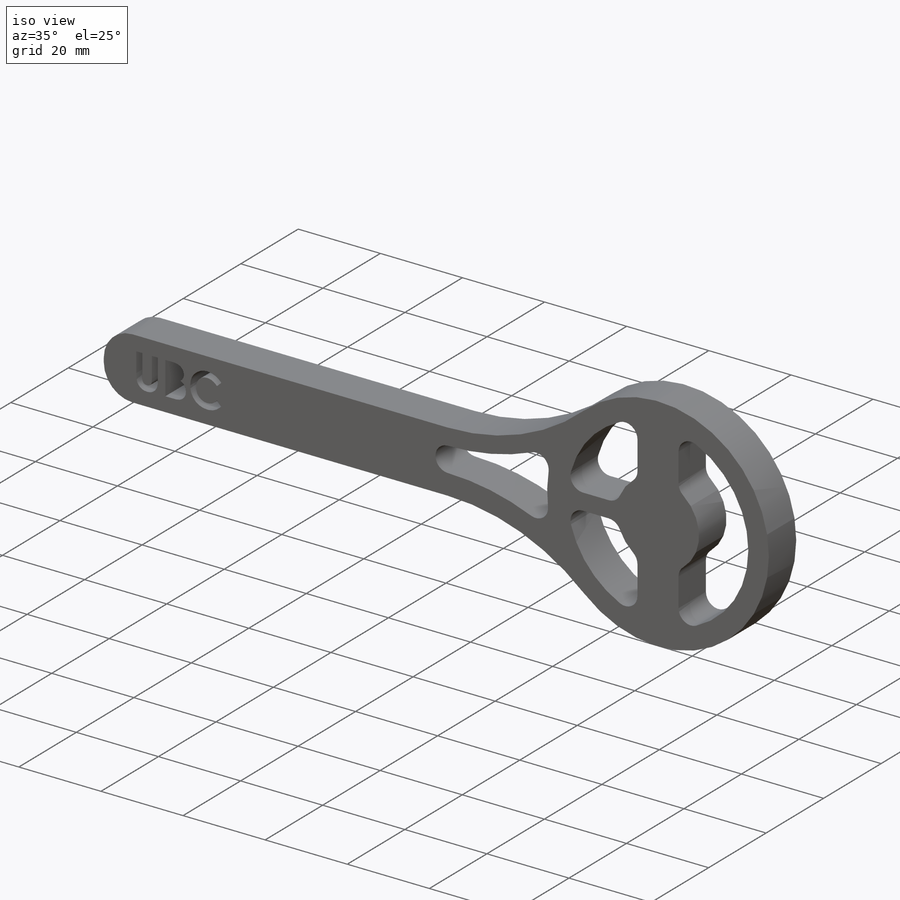
[diagram: iso view]
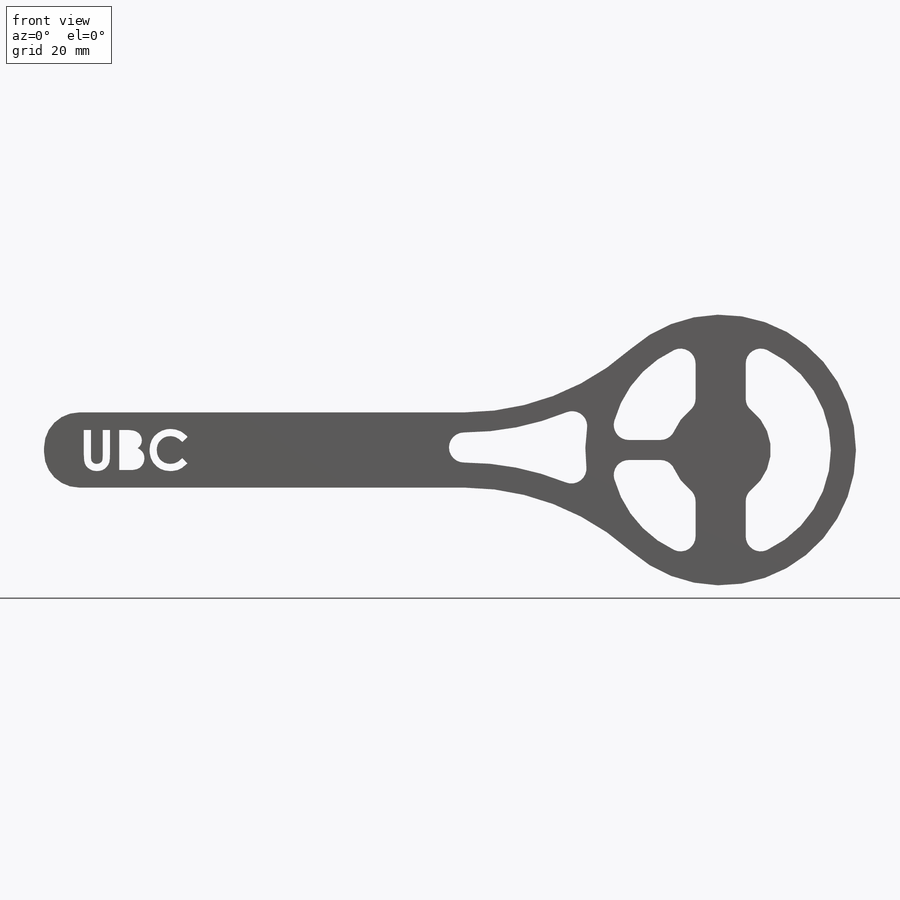
[diagram: front view]
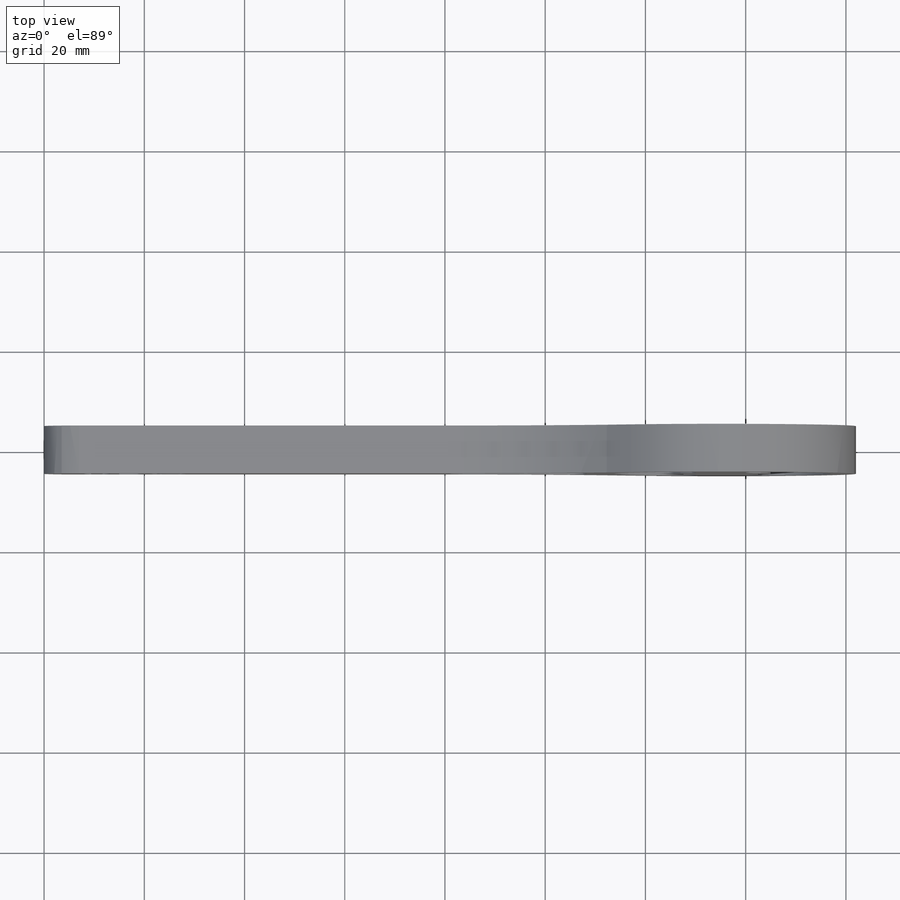
[diagram: top view]
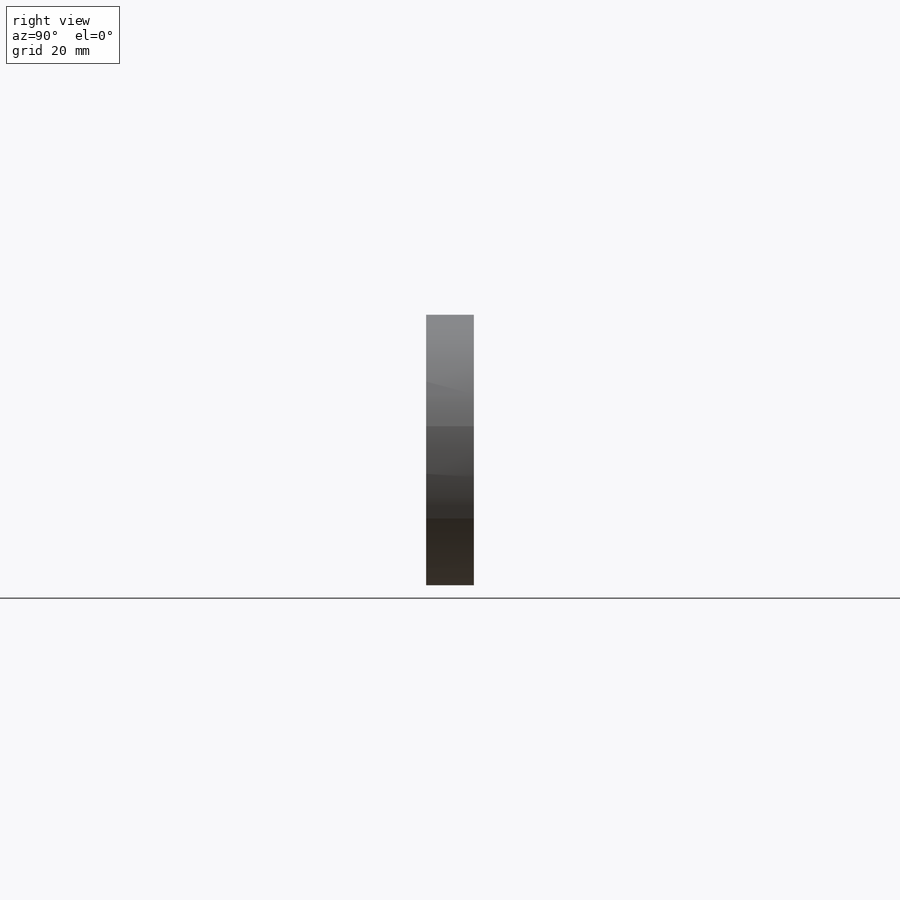
[diagram: right view]
SOLIDWORKS PART (.sldprt)
format: sldprt  version: not decoded by parser v0  size: 977,920 bytes
history: native  units: mm
features: sketch x11, cut_extrude x4, hole x3, thread x3, fillet x3, pattern_linear x2, material x1, extrude x1 (+16 scaffold rows collapsed)
feature tree (44):
  scaffold x16  (default folders/planes/origin — collapsed)
  material  "Stainless Steel (ferritic)"
  sketch  "Sketch1"  dims[D2=54.0mm D4=50.0mm D1=135.0mm D3=15.0mm]
  extrude  "Boss-Extrude1"  Depth=9.525mm
  sketch  "Sketch11"  dims[c1.D1=~42.588869mm c1.D5=20.0mm c2.D1=5.0mm c2.D2=3.0mm c2.D3=~21.501273mm c3.D1=5.0mm c3.D2=5.0mm c3.D3=4.0mm c3.D4=10.0mm]
  cut_extrude  "Cut-Extrude5"  [1 undecoded]
  hole  "CBORE for M4 SHCS1"  Diameter=4.3mm Depth=34.5mm
  sketch  "Sketch4"  dims[D1=35.0mm]
  sketch  "Sketch3"  dims[hole-wizard template sketch: 42 standard entries collapsed; hole parameters kept: c12.Thru Hole Depth=34.5mm c12.C'Bore Dia.=8.0mm c12.C'Bore Depth=4.0mm]
  pattern_linear  "LPattern1"  Count1=5 Count2=1 Spacing1=10mm Spacing2=10mm
  hole  "M4x0.7 Tapped Hole1"  Diameter=3.3mm Depth=8.1mm
  sketch  "Sketch6"  dims[D1=25.0mm]
  sketch  "Sketch5"  dims[hole-wizard template sketch: 47 standard entries collapsed; hole parameters kept: c15.Tap Drill Depth=8.1mm c15.D3=~14.816244mm c15.Drill Angle=118.0deg]
  thread  "Hole Thread1"  Diameter=6mm  [1 undecoded]
  pattern_linear  "LPattern2"  Count1=4 Count2=1 Spacing1=10mm Spacing2=10mm
  sketch  "Sketch8"  dims[D1=13.0mm]
  cut_extrude  "Cut-Extrude2"  Depth=3mm
  sketch  "Sketch9"  dims[D1=9.0mm]
  cut_extrude  "Cut-Extrude3"  [1 undecoded]
  fillet  "Fillet1"  Radius=2mm
  fillet  "Fillet2"  Radius=7mm
  sketch  "Sketch13"  dims[D1=3.5mm D2=7.0mm D4=33.0mm D5=13.0mm D3=4.0mm]
  cut_extrude  "Cut-Extrude6"  [1 undecoded]
  fillet  "Fillet3"  Radius=3mm
  hole  "M3x0.5 Tapped Hole1"  Diameter=2.5mm Depth=9.525mm
  sketch  "Sketch15"  dims[D1=46.0mm]
  sketch  "Sketch14"  dims[hole-wizard template sketch: 60 standard entries collapsed; hole parameters kept: c18.Thru Tap Drill Depth=9.525mm]
  thread  "Hole Thread2"  Diameter=3mm  [1 undecoded]
  thread  "Hole Thread3"  Diameter=3mm  [1 undecoded]
decode coverage: 24 of 27 modeling features carry decoded parameters
note: ~ marks probable driven/reference dimensions
note: 6 parameter values undecoded
summary: no parameter record found for 3 features
note: suppression state not decoded; provenance and decode notes live in map.json
